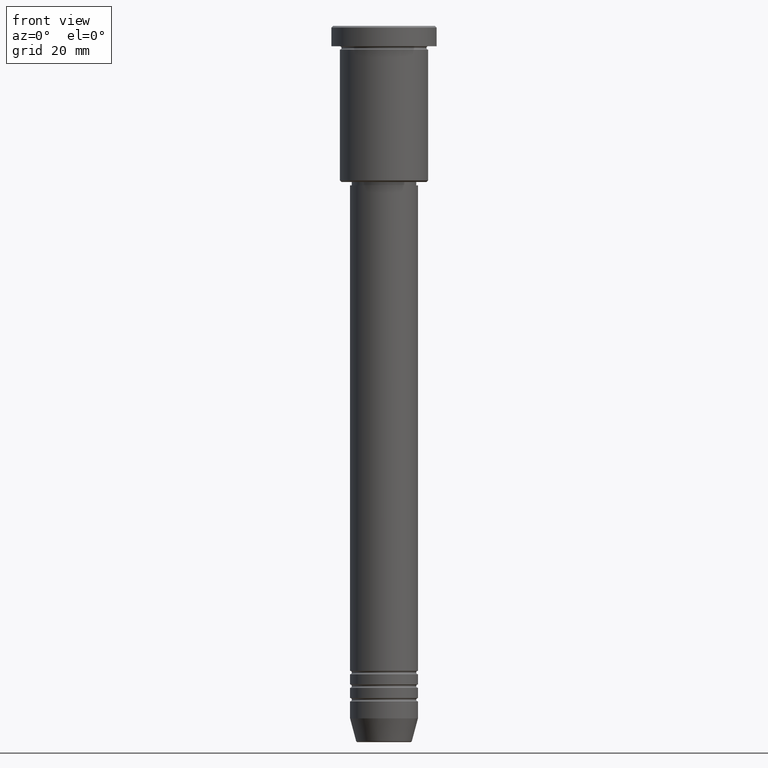
[diagram: clean part render]
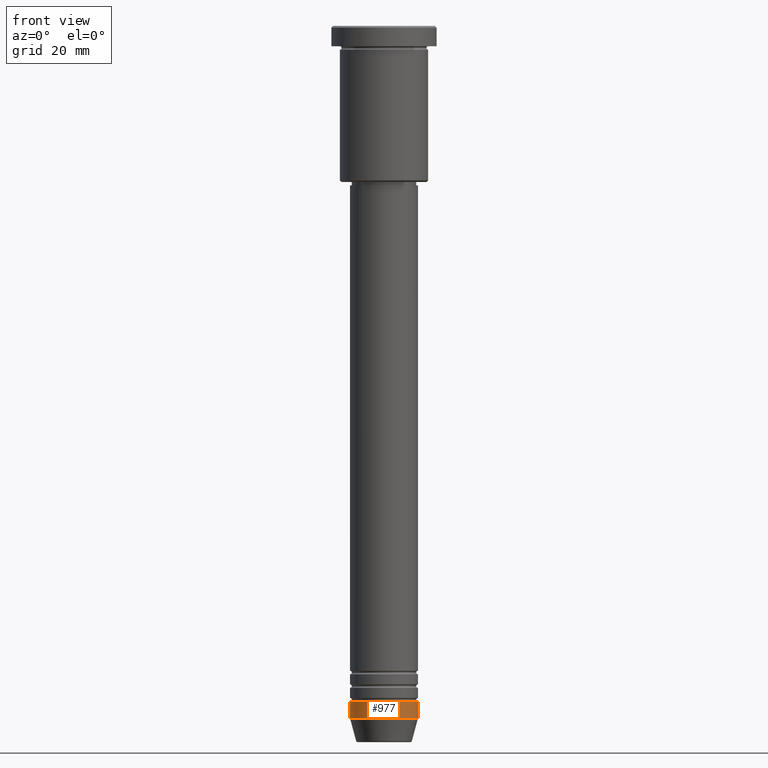
[diagram: same view with one face highlighted and labeled with its STEP entity id]
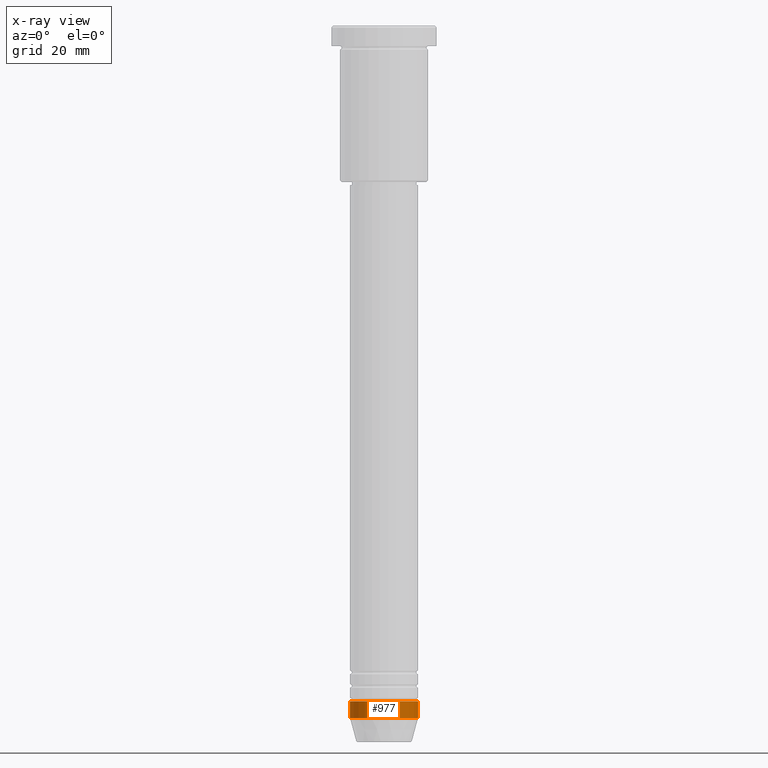
[diagram: x-ray of the same camera — body ghosted, the highlighted face saturated]
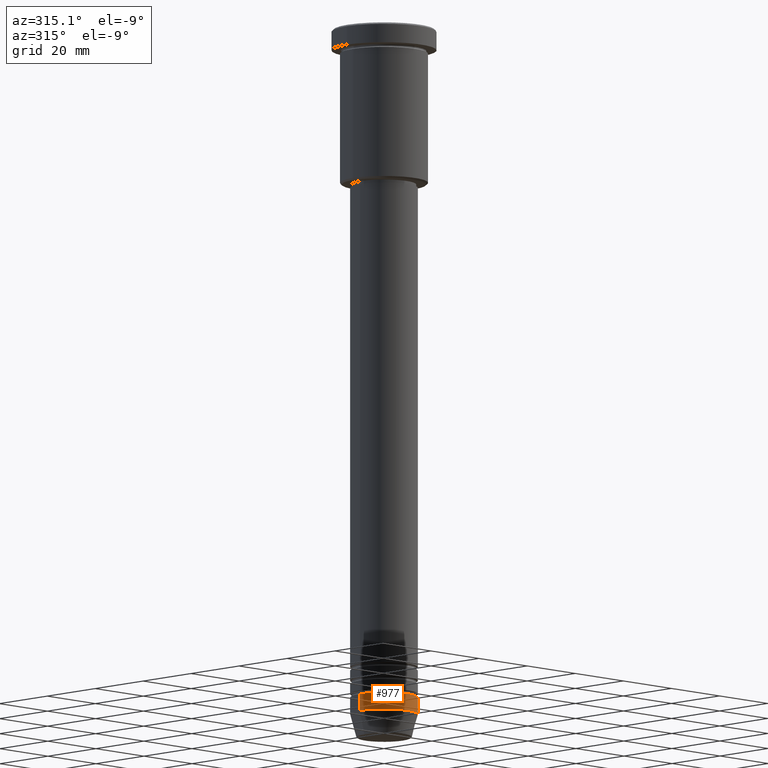
[diagram: same view with one face highlighted and labeled with its STEP entity id]
A machine part, front view. The second image highlights one B-rep face of the part: STEP entity #977.
The next image is the same camera in x-ray: the body ghosted, the highlighted face saturated — about 0% of this face is hidden behind the body in this view.
A second angle (auxiliary view) of the same face is appended — the face is thin or edge-on in the first view.
In plain terms, the highlighted cylindrical surface (edge-blend (fillet) strip) has radius 10 mm, axis along (-0, -0, 1).
Its self-contained STEP definition (entity closure, byte-faithful):
#21 = VERTEX_POINT ( 'NONE', #340 ) ;
#38 = FACE_OUTER_BOUND ( 'NONE', #927, .T. ) ;
#44 = CARTESIAN_POINT ( 'NONE',  ( 0.000000000000000000, 0.000000000000000000, -204.0000000000000284 ) ) ;
#48 = ORIENTED_EDGE ( 'NONE', *, *, #1165, .F. ) ;
#57 = CARTESIAN_POINT ( 'NONE',  ( 10.00000000000000000, 0.000000000000000000, 0.000000000000000000 ) ) ;
#94 = LINE ( 'NONE', #761, #156 ) ;
#156 = VECTOR ( 'NONE', #906, 1000.000000000000000 ) ;
#161 = ORIENTED_EDGE ( 'NONE', *, *, #844, .F. ) ;
#291 = CARTESIAN_POINT ( 'NONE',  ( 0.000000000000000000, 0.000000000000000000, -199.0000000000000284 ) ) ;
#307 = DIRECTION ( 'NONE',  ( -0.000000000000000000, -0.000000000000000000, 1.000000000000000000 ) ) ;
#323 = EDGE_CURVE ( 'NONE', #442, #413, #776, .T. ) ;
#333 = VECTOR ( 'NONE', #792, 1000.000000000000000 ) ;
#340 = CARTESIAN_POINT ( 'NONE',  ( -10.00000000000000000, 1.224646799147353256E-15, -199.0000000000000284 ) ) ;
#349 = EDGE_CURVE ( 'NONE', #624, #442, #1002, .T. ) ;
#404 = DIRECTION ( 'NONE',  ( -0.000000000000000000, -0.000000000000000000, 1.000000000000000000 ) ) ;
#413 = VERTEX_POINT ( 'NONE', #1135 ) ;
#423 = CARTESIAN_POINT ( 'NONE',  ( 10.00000000000000000, 0.000000000000000000, -204.0000000000000284 ) ) ;
#442 = VERTEX_POINT ( 'NONE', #423 ) ;
#599 = DIRECTION ( 'NONE',  ( 1.000000000000000000, 0.000000000000000000, 0.000000000000000000 ) ) ;
#624 = VERTEX_POINT ( 'NONE', #998 ) ;
#714 = ORIENTED_EDGE ( 'NONE', *, *, #323, .T. ) ;
#761 = CARTESIAN_POINT ( 'NONE',  ( -10.00000000000000000, 1.224646799147353256E-15, 0.000000000000000000 ) ) ;
#776 = LINE ( 'NONE', #57, #333 ) ;
#792 = DIRECTION ( 'NONE',  ( -0.000000000000000000, -0.000000000000000000, 1.000000000000000000 ) ) ;
#844 = EDGE_CURVE ( 'NONE', #21, #413, #932, .T. ) ;
#852 = DIRECTION ( 'NONE',  ( -0.000000000000000000, -0.000000000000000000, 1.000000000000000000 ) ) ;
#892 = AXIS2_PLACEMENT_3D ( 'NONE', #291, #852, #938 ) ;
#898 = ORIENTED_EDGE ( 'NONE', *, *, #349, .T. ) ;
#906 = DIRECTION ( 'NONE',  ( -0.000000000000000000, -0.000000000000000000, 1.000000000000000000 ) ) ;
#927 = EDGE_LOOP ( 'NONE', ( #48, #898, #714, #161 ) ) ;
#932 = CIRCLE ( 'NONE', #892, 10.00000000000000000 ) ;
#938 = DIRECTION ( 'NONE',  ( 1.000000000000000000, 0.000000000000000000, 0.000000000000000000 ) ) ;
#953 = CARTESIAN_POINT ( 'NONE',  ( 0.000000000000000000, 0.000000000000000000, 0.000000000000000000 ) ) ;
#967 = DIRECTION ( 'NONE',  ( 1.000000000000000000, 0.000000000000000000, 0.000000000000000000 ) ) ;
#977 = ADVANCED_FACE ( 'NONE', ( #38 ), #1037, .T. ) ;
#998 = CARTESIAN_POINT ( 'NONE',  ( -10.00000000000000000, 1.224646799147353256E-15, -204.0000000000000284 ) ) ;
#1002 = CIRCLE ( 'NONE', #1149, 10.00000000000000000 ) ;
#1037 = CYLINDRICAL_SURFACE ( 'NONE', #1061, 10.00000000000000000 ) ;
#1061 = AXIS2_PLACEMENT_3D ( 'NONE', #953, #404, #599 ) ;
#1135 = CARTESIAN_POINT ( 'NONE',  ( 10.00000000000000000, 0.000000000000000000, -199.0000000000000284 ) ) ;
#1149 = AXIS2_PLACEMENT_3D ( 'NONE', #44, #307, #967 ) ;
#1165 = EDGE_CURVE ( 'NONE', #624, #21, #94, .T. ) ;